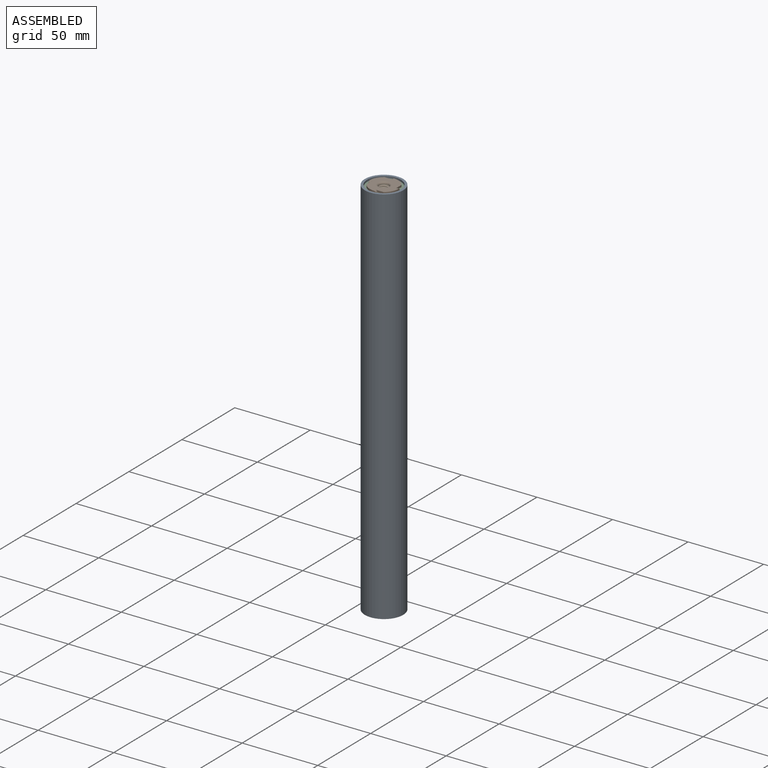
[diagram: assembled view]
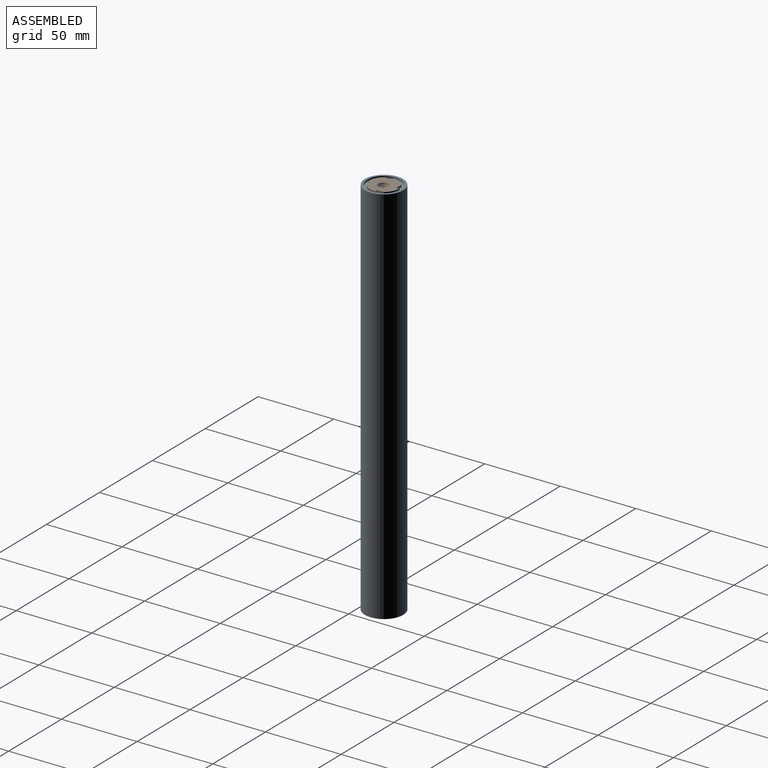
[diagram: assembled view, second angle]
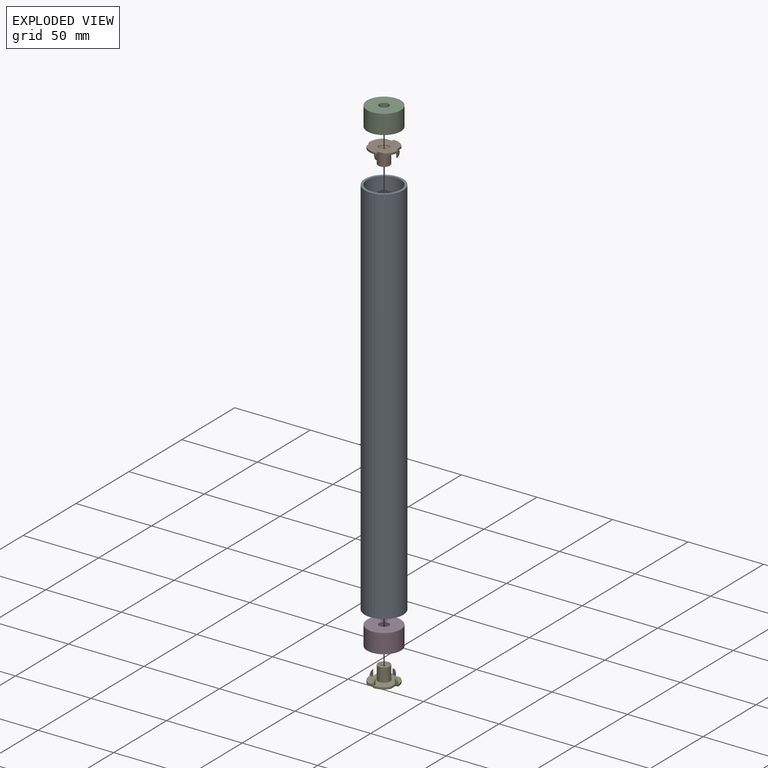
[diagram: exploded view]
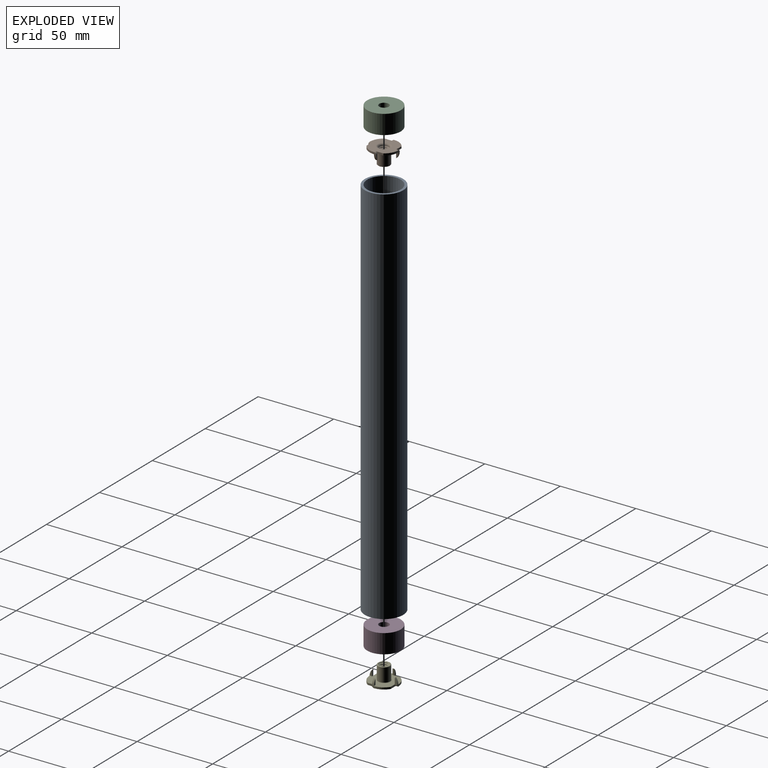
[diagram: exploded view, second angle]
ASSEMBLY  parts=5 mates=8
PART A: 4 faces, bbox 25.4x25.4x254 mm
  f0: cylinder r=12.7mm len=254mm, axis (0,0,-1), area 20268.3mm2, adj f1,f2
  f1: plane 25.4x25.4mm, normal (0,0,1), area 118.8mm2, adj f0,f3
  f2: plane 25.4x25.4mm, normal (0,0,-1), area 118.8mm2, adj f0,f3
  f3: cylinder r=11.11mm len=254mm, axis (0,0,1), area 17734.8mm2, adj f1,f2
PART B: 53 faces, bbox 19.1x19.1x11.2 mm
  f0: cone r=3.17mm half-angle=45deg, axis (0,0,-1), area 10.5mm2, adj f1,f44,f50,f52
  f1: cylinder r=2.35mm len=7.75mm, axis (0,0,1), area 14.4mm2, adj f0,f2,f3,f50,f52
  f2: cone r=2.35mm half-angle=45deg, axis (0,0,1), area 14.1mm2, adj f1,f3,f43,f50,f51,f52
  f3: cone r=2.35mm half-angle=45deg, axis (0,0,1), area 0mm2, adj f1,f2,f50
  f4: plane 19.04x19.04mm, normal (0,0,1), area 205.1mm2, adj f5,f6,f7,f8,f9,f10,f12,f13
  f5: plane 1.27x0.03mm, normal (0,1,0), area 0mm2, adj f4,f11,f17,f38
  f6: plane 1.27x0.03mm, normal (1,0,0), area 0mm2, adj f4,f11,f16,f32
  f7: plane 1.27x0.03mm, normal (0,-1,0), area 0mm2, adj f4,f11,f15,f26
  f8: plane 1.27x0.03mm, normal (-1,0,0), area 0mm2, adj f4,f11,f14,f19
  f9: cylinder r=9.53mm len=8.01mm, axis (0,0,-1), area 12.1mm2, adj f4,f11,f17,f30,f34,f47
  f10: cylinder r=9.53mm len=8.01mm, axis (0,0,-1), area 12.1mm2, adj f4,f11,f14,f36
  f11: plane 19.05x19.05mm, normal (0,0,-1), area 201.7mm2, adj f5,f6,f7,f8,f9,f10,f12,f13
  f12: cylinder r=9.53mm len=8.01mm, axis (0,0,-1), area 12.1mm2, adj f4,f11,f16,f24,f28,f48
  f13: cylinder r=9.53mm len=8.01mm, axis (0,0,-1), area 12.1mm2, adj f4,f11,f15,f18,f21,f49
  f14: plane 5.16x1.27mm, normal (0,-1,0), area 6.6mm2, adj f4,f8,f10,f11
  f15: plane 5.16x1.27mm, normal (1,0,0), area 6.6mm2, adj f4,f7,f11,f13
  f16: plane 5.16x1.27mm, normal (0,1,0), area 6.6mm2, adj f4,f6,f11,f12
  f17: plane 5.16x1.27mm, normal (-1,0,0), area 6.6mm2, adj f4,f5,f9,f11
  f18: plane 1.27x1.27mm, normal (0,-1,0), area 1.3mm2, adj f13,f20,f21
  f19: plane 5.16x1.59mm, normal (0,1,0), area 6.2mm2, adj f4,f8,f20,f21,f22,f23,f49
  f20: cylinder r=1.27mm len=1.49mm, axis (0,-1,0), area 3mm2, adj f11,f18,f19,f22
  f21: cylinder r=5.81mm len=3.89mm, axis (1,0,0), area 5.4mm2, adj f13,f18,f19,f22,f23,f49
  f22: plane 3.89x1.49mm, normal (-1,0,0), area 4mm2, adj f19,f20,f21
  f23: plane 3.57x1.48mm, normal (1,0,0), area 3.5mm2, adj f19,f21,f49
  f24: plane 1.27x1.27mm, normal (1,0,0), area 1.3mm2, adj f12,f25,f28
  f25: cylinder r=1.27mm len=1.49mm, axis (1,0,0), area 3mm2, adj f11,f24,f26,f27
  f26: plane 5.16x1.59mm, normal (-1,0,0), area 6.2mm2, adj f4,f7,f25,f27,f28,f29,f48
  f27: plane 3.89x1.49mm, normal (0,-1,0), area 4mm2, adj f25,f26,f28
  f28: cylinder r=5.81mm len=3.89mm, axis (0,1,0), area 5.4mm2, adj f12,f24,f26,f27,f29,f48
  f29: plane 3.57x1.48mm, normal (0,1,0), area 3.5mm2, adj f26,f28,f48
  f30: plane 1.27x1.27mm, normal (0,1,0), area 1.3mm2, adj f9,f31,f34
  f31: cylinder r=1.27mm len=1.49mm, axis (0,1,0), area 3mm2, adj f11,f30,f32,f33
  f32: plane 5.16x1.59mm, normal (0,-1,0), area 6.2mm2, adj f4,f6,f31,f33,f34,f35,f47
  f33: plane 3.89x1.49mm, normal (1,0,0), area 4mm2, adj f31,f32,f34
  f34: cylinder r=5.81mm len=3.89mm, axis (-1,0,0), area 5.4mm2, adj f9,f30,f32,f33,f35,f47
  f35: plane 3.57x1.48mm, normal (-1,0,0), area 3.5mm2, adj f32,f34,f47
  f36: plane 1.27x1.27mm, normal (-1,0,0), area 1.3mm2, adj f10,f37,f40
  f37: cylinder r=1.27mm len=1.49mm, axis (-1,0,0), area 3mm2, adj f11,f36,f38,f39
  f38: plane 5.16x1.27mm, normal (1,0,0), area 6.2mm2, adj f5,f37,f39,f40,f41
  f39: plane 3.89x1.49mm, normal (0,1,0), area 4mm2, adj f37,f38,f40
  f40: cylinder r=5.81mm len=3.89mm, axis (0,-1,0), area 5.4mm2, adj f36,f38,f39,f41
  f41: plane 3.89x1.49mm, normal (0,-1,0), area 4mm2, adj f4,f38,f40
  f42: cylinder r=3.95mm len=8.89mm, axis (0,0,-1), area 220.6mm2, adj f45,f46
  f43: plane 7.26x7.26mm, normal (0,0,1), area 7.2mm2, adj f2,f45
  f44: torus R=4.45mm, axis (0,0,1), area 45.6mm2, adj f0,f11,f51
  f45: torus R=3.63mm, axis (0,0,1), area 12mm2, adj f42,f43
  f46: torus R=4.27mm, axis (0,0,1), area 12.7mm2, adj f4,f42
  f47: cylinder r=0.32mm len=1.49mm, axis (0,-1,0), area 0.7mm2, adj f4,f9,f32,f34,f35
  f48: cylinder r=0.32mm len=1.49mm, axis (-1,0,0), area 0.7mm2, adj f4,f12,f26,f28,f29
  f49: cylinder r=0.32mm len=1.49mm, axis (0,-1,0), area 0.7mm2, adj f4,f13,f19,f21,f23
  f50: bspline ~10.04x6.35mm, area 112.5mm2, adj f0,f1,f2,f3,f51
  f51: bspline ~9.84x6.35mm, area 23.4mm2, adj f2,f44,f50,f52
  f52: bspline ~10.04x6.35mm, area 112.3mm2, adj f0,f1,f2,f51
PART C: 4 faces, bbox 22.2x22.2x12.7 mm
  f0: cylinder r=11.11mm len=22.23mm, axis (0,0,-1), area 886.7mm2, adj f1,f2
  f1: plane 22.23x22.23mm, normal (0,0,1), area 356.3mm2, adj f0,f3
  f2: plane 22.23x22.23mm, normal (0,0,-1), area 356.3mm2, adj f0,f3
  f3: cylinder r=3.17mm len=12.7mm, axis (0,0,-1), area 253.4mm2, adj f1,f2
PART D: same geometry as C
PART E: same geometry as B
PLACE A t=(35.55,83.31,-62.63)mm
PLACE B rot(axis=(1,0,0),180deg) t=(35.55,83.31,64.37)mm
PLACE C t=(35.55,83.31,177.4)mm
PLACE D t=(35.55,83.31,-61.36)mm
PLACE E t=(35.55,83.31,-189.63)mm
MATE planar B.f0 <-> C.f0  axis (0,0,-1) through (35.55,83.31,63.1)mm
MATE cylindrical D.f0 <-> A.f0  axis (0,0,-1) through (35.55,83.31,-188.36)mm
MATE planar A.f0 <-> E.f0  axis (0,0,-1) through (35.55,83.31,-189.63)mm
MATE cylindrical D.f0 <-> E.f0  axis (0,0,-1) through (35.55,83.31,-188.36)mm
MATE cylindrical B.f0 <-> A.f0  axis (0,0,-1) through (35.55,83.31,64)mm
MATE cylindrical C.f0 <-> B.f0  axis (0,0,1) through (35.55,83.31,63.1)mm
MATE planar E.f0 <-> D.f0  axis (0,0,-1) through (35.55,83.31,-188.36)mm
MATE planar A.f0 <-> B.f0  axis (0,0,1) through (35.55,83.31,64.37)mm
